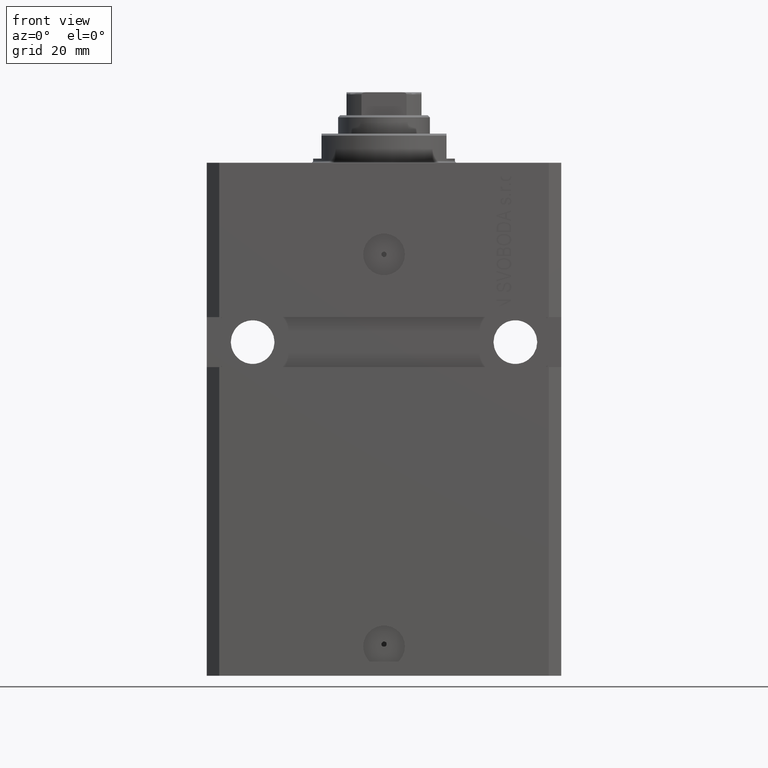
[diagram: clean part render]
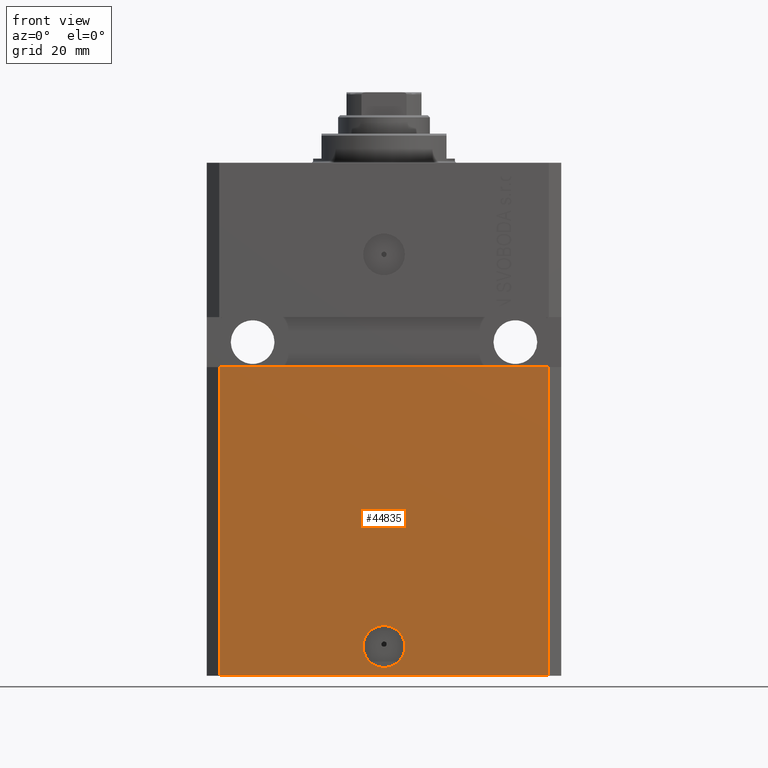
[diagram: same view with one face highlighted and labeled with its STEP entity id]
A machine part, front view. The second image highlights one B-rep face of the part: STEP entity #44835.
In plain terms, the highlighted planar face has unit normal (0, -1, 0).
Its self-contained STEP definition (entity closure, byte-faithful):
#236 = DIRECTION ( 'NONE',  ( 1.176083712526788232E-16, -1.000000000000000000, 0.000000000000000000 ) ) ;
#252 = EDGE_LOOP ( 'NONE', ( #11176, #43962, #39551, #1919 ) ) ;
#1878 = CARTESIAN_POINT ( 'NONE',  ( -39.50000000000000711, -31.50000000000000000, -123.0000000000000000 ) ) ;
#1919 = ORIENTED_EDGE ( 'NONE', *, *, #19950, .T. ) ;
#2371 = CARTESIAN_POINT ( 'NONE',  ( -39.50000000000000711, -31.50000000000000000, -123.0000000000000000 ) ) ;
#2721 = DIRECTION ( 'NONE',  ( 0.000000000000000000, 0.000000000000000000, 1.000000000000000000 ) ) ;
#3146 = CARTESIAN_POINT ( 'NONE',  ( -42.50000000000000000, -31.50000000000000711, -48.99999999999999289 ) ) ;
#3784 = AXIS2_PLACEMENT_3D ( 'NONE', #30621, #236, #16783 ) ;
#5617 = EDGE_CURVE ( 'NONE', #44397, #19320, #17215, .T. ) ;
#5705 = CIRCLE ( 'NONE', #33216, 5.000000000000006217 ) ;
#7087 = FACE_OUTER_BOUND ( 'NONE', #252, .T. ) ;
#7583 = EDGE_CURVE ( 'NONE', #17694, #26115, #29829, .T. ) ;
#7888 = ORIENTED_EDGE ( 'NONE', *, *, #33570, .F. ) ;
#9545 = VECTOR ( 'NONE', #2721, 1000.000000000000000 ) ;
#10220 = EDGE_LOOP ( 'NONE', ( #22091, #7888 ) ) ;
#10405 = DIRECTION ( 'NONE',  ( 1.000000000000000000, 1.632680918566406300E-16, 1.632680918566406300E-16 ) ) ;
#10996 = VERTEX_POINT ( 'NONE', #36746 ) ;
#11176 = ORIENTED_EDGE ( 'NONE', *, *, #35025, .F. ) ;
#13016 = CARTESIAN_POINT ( 'NONE',  ( -39.50000000000000000, -31.50000000000000711, -48.99999999999999289 ) ) ;
#14467 = DIRECTION ( 'NONE',  ( 0.000000000000000000, 0.000000000000000000, 1.000000000000000000 ) ) ;
#14564 = VERTEX_POINT ( 'NONE', #28549 ) ;
#15969 = LINE ( 'NONE', #2371, #39347 ) ;
#16783 = DIRECTION ( 'NONE',  ( 1.000000000000000000, 0.000000000000000000, 0.000000000000000000 ) ) ;
#17215 = LINE ( 'NONE', #1878, #9545 ) ;
#17694 = VERTEX_POINT ( 'NONE', #26074 ) ;
#19320 = VERTEX_POINT ( 'NONE', #13016 ) ;
#19950 = EDGE_CURVE ( 'NONE', #10996, #14564, #38065, .T. ) ;
#22091 = ORIENTED_EDGE ( 'NONE', *, *, #7583, .F. ) ;
#22856 = CARTESIAN_POINT ( 'NONE',  ( 0.000000000000000000, -31.50000000000000000, -115.9999999999999858 ) ) ;
#24532 = PLANE ( 'NONE',  #24958 ) ;
#24674 = CARTESIAN_POINT ( 'NONE',  ( 39.50000000000000711, -31.50000000000000000, -123.0000000000000000 ) ) ;
#24958 = AXIS2_PLACEMENT_3D ( 'NONE', #27702, #31344, #34295 ) ;
#26074 = CARTESIAN_POINT ( 'NONE',  ( 5.000000000000006217, -31.50000000000000000, -115.9999999999999858 ) ) ;
#26115 = VERTEX_POINT ( 'NONE', #26770 ) ;
#26770 = CARTESIAN_POINT ( 'NONE',  ( -5.000000000000006217, -31.50000000000000000, -115.9999999999999858 ) ) ;
#27702 = CARTESIAN_POINT ( 'NONE',  ( -39.50000000000000711, -31.50000000000000000, -123.0000000000000000 ) ) ;
#28549 = CARTESIAN_POINT ( 'NONE',  ( 39.50000000000001421, -31.49999999999999289, -48.99999999999997868 ) ) ;
#29829 = CIRCLE ( 'NONE', #3784, 5.000000000000006217 ) ;
#30088 = VECTOR ( 'NONE', #14467, 1000.000000000000000 ) ;
#30126 = DIRECTION ( 'NONE',  ( 1.176083712526788232E-16, -1.000000000000000000, 0.000000000000000000 ) ) ;
#30621 = CARTESIAN_POINT ( 'NONE',  ( 0.000000000000000000, -31.50000000000000000, -115.9999999999999858 ) ) ;
#31344 = DIRECTION ( 'NONE',  ( 0.000000000000000000, -1.000000000000000000, 0.000000000000000000 ) ) ;
#33216 = AXIS2_PLACEMENT_3D ( 'NONE', #22856, #30126, #36912 ) ;
#33570 = EDGE_CURVE ( 'NONE', #26115, #17694, #5705, .T. ) ;
#34295 = DIRECTION ( 'NONE',  ( 0.000000000000000000, -0.000000000000000000, -1.000000000000000000 ) ) ;
#34634 = CARTESIAN_POINT ( 'NONE',  ( -39.50000000000000711, -31.50000000000000000, -123.0000000000000000 ) ) ;
#34749 = FACE_BOUND ( 'NONE', #10220, .T. ) ;
#35025 = EDGE_CURVE ( 'NONE', #19320, #14564, #38508, .T. ) ;
#36746 = CARTESIAN_POINT ( 'NONE',  ( 39.50000000000000711, -31.50000000000000000, -123.0000000000000000 ) ) ;
#36912 = DIRECTION ( 'NONE',  ( 1.000000000000000000, 0.000000000000000000, 0.000000000000000000 ) ) ;
#38065 = LINE ( 'NONE', #24674, #30088 ) ;
#38508 = LINE ( 'NONE', #3146, #42772 ) ;
#39347 = VECTOR ( 'NONE', #44302, 1000.000000000000000 ) ;
#39551 = ORIENTED_EDGE ( 'NONE', *, *, #42171, .T. ) ;
#42171 = EDGE_CURVE ( 'NONE', #44397, #10996, #15969, .T. ) ;
#42772 = VECTOR ( 'NONE', #10405, 1000.000000000000000 ) ;
#43962 = ORIENTED_EDGE ( 'NONE', *, *, #5617, .F. ) ;
#44302 = DIRECTION ( 'NONE',  ( 1.000000000000000000, 0.000000000000000000, 0.000000000000000000 ) ) ;
#44397 = VERTEX_POINT ( 'NONE', #34634 ) ;
#44835 = ADVANCED_FACE ( 'NONE', ( #34749, #7087 ), #24532, .T. ) ;